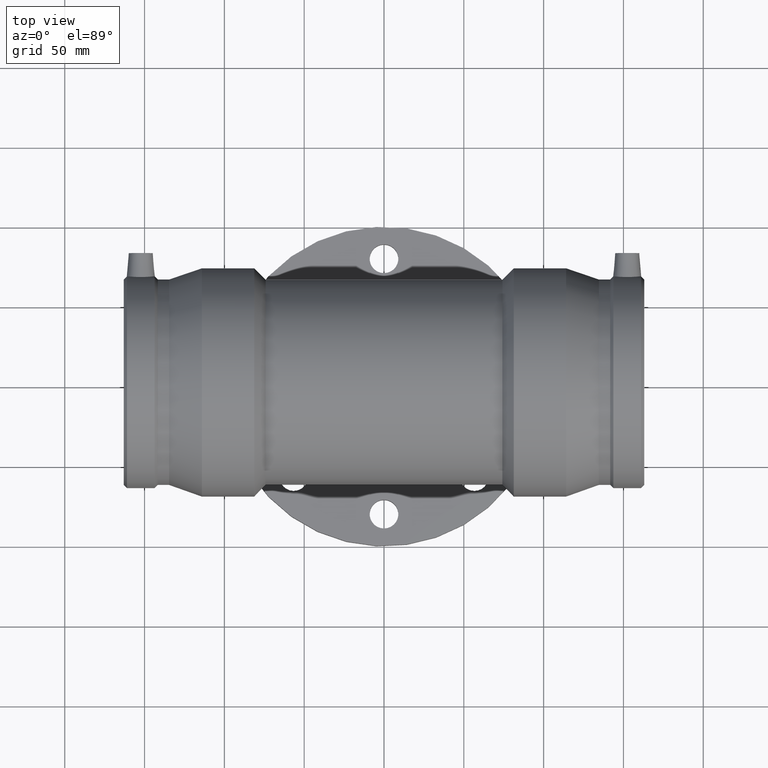
[diagram: clean part render]
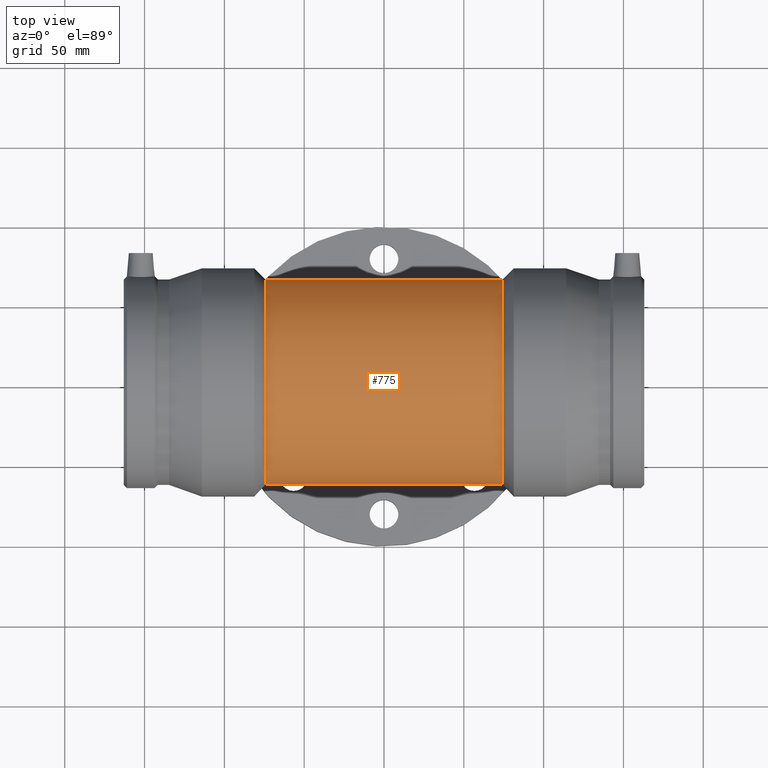
[diagram: same view with one face highlighted and labeled with its STEP entity id]
A machine part, top view. The second image highlights one B-rep face of the part: STEP entity #775.
In plain terms, the highlighted cylindrical surface (bore or boss wall) has radius 64.35 mm, axis along (1, 0, 0).
Its self-contained STEP definition (entity closure, byte-faithful):
#79=FACE_BOUND('',#339,.T.);
#80=FACE_BOUND('',#340,.T.);
#143=CIRCLE('',#867,64.35);
#144=CIRCLE('',#868,64.35);
#199=CYLINDRICAL_SURFACE('',#866,64.35);
#239=FACE_OUTER_BOUND('',#338,.T.);
#338=EDGE_LOOP('',(#648));
#339=EDGE_LOOP('',(#649));
#340=EDGE_LOOP('',(#650));
#424=B_SPLINE_CURVE_WITH_KNOTS('',3,(#1539,#1540,#1541,#1542,#1543,#1544,
#1545,#1546,#1547,#1548,#1549,#1550,#1551,#1552,#1553,#1554,#1555,#1556,
#1557,#1558,#1559,#1560,#1561,#1562,#1563,#1564,#1565,#1566,#1567,#1568,
#1569,#1570,#1571,#1572,#1573,#1574,#1575,#1576,#1577,#1578,#1579,#1580,
#1581,#1582,#1583,#1584,#1585,#1586,#1587,#1588,#1589,#1590,#1591,#1592,
#1593,#1594,#1595,#1596,#1597,#1598,#1599,#1600,#1601,#1602,#1603,#1604),
 .UNSPECIFIED.,.T.,.F.,(4,2,2,2,2,2,2,2,2,2,2,2,2,2,2,2,2,2,2,2,2,2,2,2,
2,2,2,2,2,2,2,2,4),(0.,1.01632762894316,2.03265525788632,3.04898288682948,
4.06531051577264,5.05525954704069,6.04520857830873,7.03515760957678,8.02510664084483,
9.01505567211288,10.0050047033809,10.994953734649,11.984902765917,13.0012303948602,
14.0175580238033,15.0338856527465,16.0502132816897,17.0665409106328,18.082868539576,
19.0991961685191,20.1155237974623,21.1054728287303,22.0954218599984,23.0853708912664,
24.0753199225345,25.0652689538025,26.0552179850706,27.0451670163386,28.0351160476067,
29.0514436765498,30.067771305493,31.0840989344362,32.1004265633793),
 .UNSPECIFIED.);
#455=VERTEX_POINT('',#1538);
#464=VERTEX_POINT('',#1631);
#465=VERTEX_POINT('',#1633);
#529=EDGE_CURVE('',#455,#455,#424,.T.);
#538=EDGE_CURVE('',#464,#464,#143,.T.);
#539=EDGE_CURVE('',#465,#465,#144,.T.);
#648=ORIENTED_EDGE('',*,*,#538,.F.);
#649=ORIENTED_EDGE('',*,*,#539,.T.);
#650=ORIENTED_EDGE('',*,*,#529,.T.);
#775=ADVANCED_FACE('',(#239,#79,#80),#199,.T.);
#866=AXIS2_PLACEMENT_3D('',#1630,#1045,#1046);
#867=AXIS2_PLACEMENT_3D('',#1632,#1047,#1048);
#868=AXIS2_PLACEMENT_3D('',#1634,#1049,#1050);
#1045=DIRECTION('center_axis',(1.,0.,0.));
#1046=DIRECTION('ref_axis',(0.,1.,0.));
#1047=DIRECTION('center_axis',(1.,0.,0.));
#1048=DIRECTION('ref_axis',(0.,0.,-1.));
#1049=DIRECTION('center_axis',(1.,0.,0.));
#1050=DIRECTION('ref_axis',(0.,0.,-1.));
#1538=CARTESIAN_POINT('',(-6.66133814775094E-15,50.,-40.5083016183103));
#1539=CARTESIAN_POINT('Ctrl Pts',(-6.66133814775094E-15,50.,-40.5083016183103));
#1540=CARTESIAN_POINT('Ctrl Pts',(-3.38775876314387,50.,-40.5083016183103));
#1541=CARTESIAN_POINT('Ctrl Pts',(-6.76821417065702,49.6530092154703,-40.9460611472531));
#1542=CARTESIAN_POINT('Ctrl Pts',(-13.3336580549423,48.3057307367447,-42.5271397436577));
#1543=CARTESIAN_POINT('Ctrl Pts',(-16.5206404051619,47.3060956659843,-43.6627251973018));
#1544=CARTESIAN_POINT('Ctrl Pts',(-22.5698770369614,44.7369999257476,-46.2914773387385));
#1545=CARTESIAN_POINT('Ctrl Pts',(-25.4374008903258,43.1651097340531,-47.7831501579383));
#1546=CARTESIAN_POINT('Ctrl Pts',(-30.7442857881522,39.5610534911403,-50.8072749250213));
#1547=CARTESIAN_POINT('Ctrl Pts',(-33.1831578254987,37.5275202931561,-52.3389554612186));
#1548=CARTESIAN_POINT('Ctrl Pts',(-37.4711417266261,33.2395363920287,-55.1585712127573));
#1549=CARTESIAN_POINT('Ctrl Pts',(-39.4915411273443,30.833731517543,-56.5588163017742));
#1550=CARTESIAN_POINT('Ctrl Pts',(-43.1096182759899,25.531581088926,-59.1418385571116));
#1551=CARTESIAN_POINT('Ctrl Pts',(-44.7073990991172,22.6347937886579,-60.3235644486224));
#1552=CARTESIAN_POINT('Ctrl Pts',(-47.3138498682455,16.5071241317371,-62.2798623448944));
#1553=CARTESIAN_POINT('Ctrl Pts',(-48.3247439488991,13.2692117298588,-63.0556912662656));
#1554=CARTESIAN_POINT('Ctrl Pts',(-49.6681157397346,6.66566850664518,-64.0910371617842));
#1555=CARTESIAN_POINT('Ctrl Pts',(-50.,3.29983010422682,-64.35));
#1556=CARTESIAN_POINT('Ctrl Pts',(-50.,-3.29983010422682,-64.35));
#1557=CARTESIAN_POINT('Ctrl Pts',(-49.6681157397346,-6.66566850664517,-64.0910371617842));
#1558=CARTESIAN_POINT('Ctrl Pts',(-48.3247439488991,-13.2692117298588,-63.0556912662656));
#1559=CARTESIAN_POINT('Ctrl Pts',(-47.3138498682455,-16.5071241317371,-62.2798623448944));
#1560=CARTESIAN_POINT('Ctrl Pts',(-44.7073990991172,-22.6347937886579,-60.3235644486224));
#1561=CARTESIAN_POINT('Ctrl Pts',(-43.1096182759899,-25.531581088926,-59.1418385571116));
#1562=CARTESIAN_POINT('Ctrl Pts',(-39.4915411273443,-30.833731517543,-56.5588163017743));
#1563=CARTESIAN_POINT('Ctrl Pts',(-37.4711417266261,-33.2395363920287,-55.1585712127573));
#1564=CARTESIAN_POINT('Ctrl Pts',(-33.1831578254987,-37.5275202931561,-52.3389554612186));
#1565=CARTESIAN_POINT('Ctrl Pts',(-30.7442857881521,-39.5610534911403,-50.8072749250213));
#1566=CARTESIAN_POINT('Ctrl Pts',(-25.4374008903258,-43.1651097340531,-47.7831501579382));
#1567=CARTESIAN_POINT('Ctrl Pts',(-22.5698770369614,-44.7369999257476,-46.2914773387385));
#1568=CARTESIAN_POINT('Ctrl Pts',(-16.5206404051619,-47.3060956659843,-43.6627251973018));
#1569=CARTESIAN_POINT('Ctrl Pts',(-13.3336580549423,-48.3057307367447,-42.5271397436577));
#1570=CARTESIAN_POINT('Ctrl Pts',(-6.76821417065702,-49.6530092154703,-40.9460611472531));
#1571=CARTESIAN_POINT('Ctrl Pts',(-3.38775876314387,-50.,-40.5083016183103));
#1572=CARTESIAN_POINT('Ctrl Pts',(3.38775876314386,-50.,-40.5083016183103));
#1573=CARTESIAN_POINT('Ctrl Pts',(6.76821417065702,-49.6530092154703,-40.9460611472531));
#1574=CARTESIAN_POINT('Ctrl Pts',(13.3336580549423,-48.3057307367447,-42.5271397436577));
#1575=CARTESIAN_POINT('Ctrl Pts',(16.5206404051619,-47.3060956659843,-43.6627251973018));
#1576=CARTESIAN_POINT('Ctrl Pts',(22.5698770369614,-44.7369999257476,-46.2914773387385));
#1577=CARTESIAN_POINT('Ctrl Pts',(25.4374008903258,-43.1651097340531,-47.7831501579383));
#1578=CARTESIAN_POINT('Ctrl Pts',(30.7442857881521,-39.5610534911404,-50.8072749250213));
#1579=CARTESIAN_POINT('Ctrl Pts',(33.1831578254987,-37.5275202931561,-52.3389554612186));
#1580=CARTESIAN_POINT('Ctrl Pts',(37.4711417266261,-33.2395363920287,-55.1585712127573));
#1581=CARTESIAN_POINT('Ctrl Pts',(39.4915411273443,-30.833731517543,-56.5588163017742));
#1582=CARTESIAN_POINT('Ctrl Pts',(43.1096182759899,-25.531581088926,-59.1418385571116));
#1583=CARTESIAN_POINT('Ctrl Pts',(44.7073990991172,-22.6347937886579,-60.3235644486224));
#1584=CARTESIAN_POINT('Ctrl Pts',(47.3138498682455,-16.5071241317372,-62.2798623448944));
#1585=CARTESIAN_POINT('Ctrl Pts',(48.3247439488991,-13.2692117298588,-63.0556912662656));
#1586=CARTESIAN_POINT('Ctrl Pts',(49.6681157397345,-6.6656685066452,-64.0910371617842));
#1587=CARTESIAN_POINT('Ctrl Pts',(50.,-3.29983010422684,-64.35));
#1588=CARTESIAN_POINT('Ctrl Pts',(50.,3.29983010422683,-64.35));
#1589=CARTESIAN_POINT('Ctrl Pts',(49.6681157397345,6.66566850664519,-64.0910371617842));
#1590=CARTESIAN_POINT('Ctrl Pts',(48.3247439488991,13.2692117298588,-63.0556912662656));
#1591=CARTESIAN_POINT('Ctrl Pts',(47.3138498682455,16.5071241317372,-62.2798623448944));
#1592=CARTESIAN_POINT('Ctrl Pts',(44.7073990991172,22.6347937886579,-60.3235644486224));
#1593=CARTESIAN_POINT('Ctrl Pts',(43.1096182759899,25.531581088926,-59.1418385571116));
#1594=CARTESIAN_POINT('Ctrl Pts',(39.4915411273443,30.833731517543,-56.5588163017742));
#1595=CARTESIAN_POINT('Ctrl Pts',(37.4711417266261,33.2395363920287,-55.1585712127573));
#1596=CARTESIAN_POINT('Ctrl Pts',(33.1831578254987,37.5275202931561,-52.3389554612186));
#1597=CARTESIAN_POINT('Ctrl Pts',(30.7442857881521,39.5610534911403,-50.8072749250213));
#1598=CARTESIAN_POINT('Ctrl Pts',(25.4374008903258,43.1651097340531,-47.7831501579383));
#1599=CARTESIAN_POINT('Ctrl Pts',(22.5698770369614,44.7369999257476,-46.2914773387385));
#1600=CARTESIAN_POINT('Ctrl Pts',(16.5206404051619,47.3060956659843,-43.6627251973018));
#1601=CARTESIAN_POINT('Ctrl Pts',(13.3336580549423,48.3057307367447,-42.5271397436577));
#1602=CARTESIAN_POINT('Ctrl Pts',(6.76821417065702,49.6530092154703,-40.9460611472531));
#1603=CARTESIAN_POINT('Ctrl Pts',(3.38775876314386,50.,-40.5083016183103));
#1604=CARTESIAN_POINT('Ctrl Pts',(-6.66133814775094E-15,50.,-40.5083016183103));
#1630=CARTESIAN_POINT('Origin',(0.,0.,0.));
#1631=CARTESIAN_POINT('',(74.165,64.35,0.));
#1632=CARTESIAN_POINT('Origin',(74.165,0.,0.));
#1633=CARTESIAN_POINT('',(-74.165,64.35,0.));
#1634=CARTESIAN_POINT('Origin',(-74.165,0.,0.));